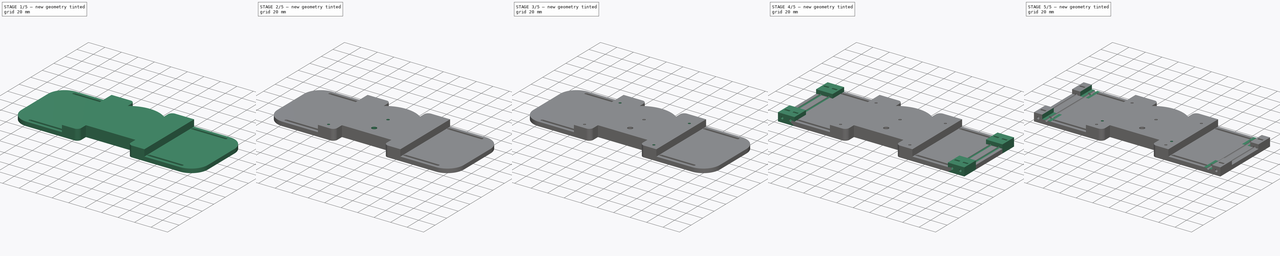
[diagram: build sequence overview — one tinted view per stage of 5, left to right]
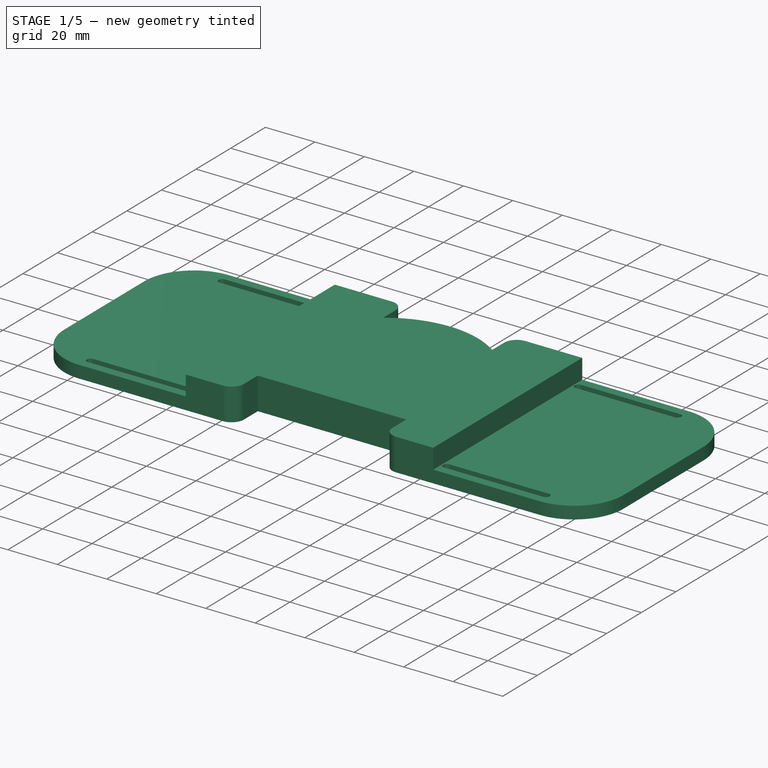
[diagram: stage 1 of 5 — iso view after this stage's code; geometry added in this stage tinted green]
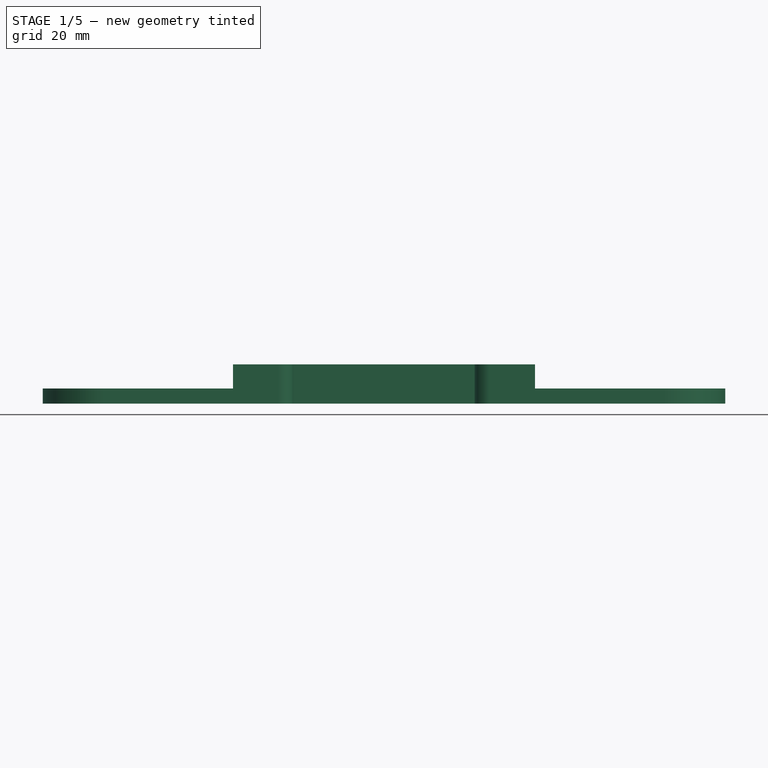
[diagram: stage 1 of 5 — front view after this stage's code; geometry added in this stage tinted green]
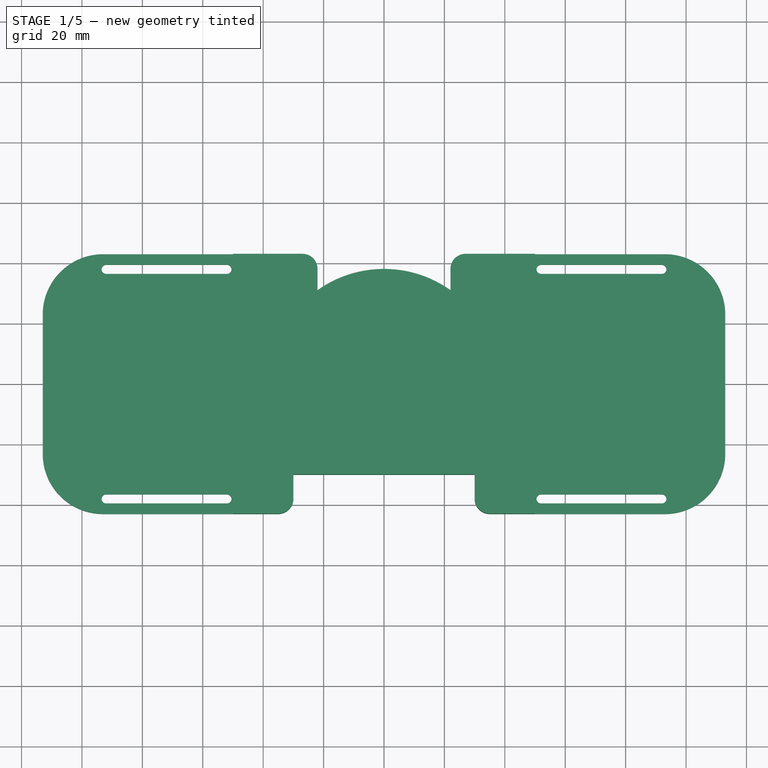
[diagram: stage 1 of 5 — top view after this stage's code; geometry added in this stage tinted green]
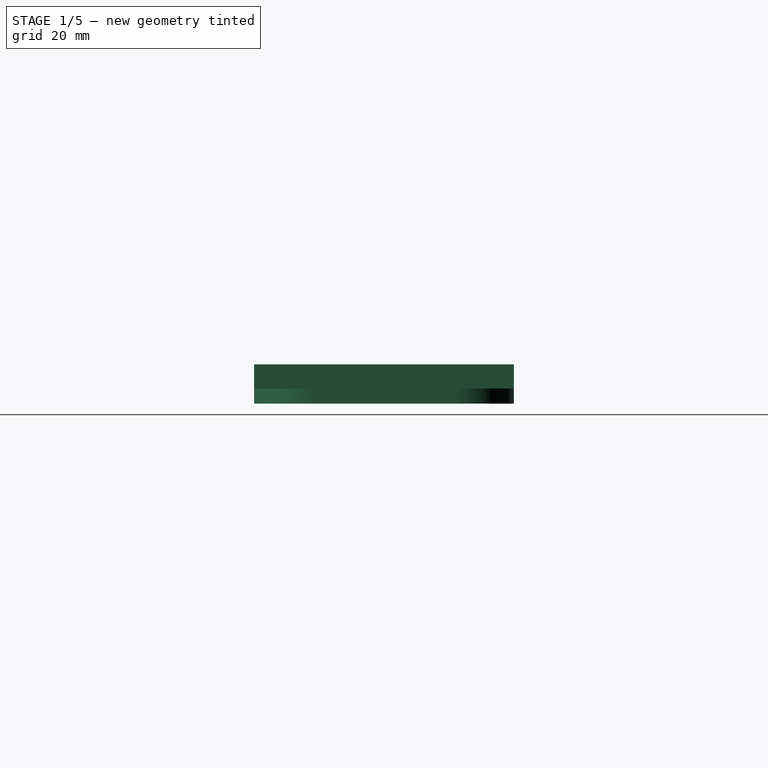
[diagram: stage 1 of 5 — right view after this stage's code; geometry added in this stage tinted green]
FCSTD DOCUMENT  (FreeCAD 0.21R33668 +26 (Git))
Label: 5_Robot_Link1_Low1_supportLeftRightmotor_1_unit
License: All rights reserved
LicenseURL: https://en.wikipedia.org/wiki/All_rights_reserved
objects: Sketcher::SketchObject×14, PartDesign::Pocket×12, PartDesign::Pad×2, Part::Feature×1, PartDesign::FeatureBase×1, PartDesign::Fillet×1, PartDesign::Body×1
note: 47 computed .brp shape members not serialized (recipe doc carries the construction recipe); baked Part::Feature solids carry a one-line shape summary decoded from their .brp

FEATURE [Part::Feature] Part__Feature  label="5_Robot_Link1_Low1_supportLeftRightmotor_1_unit"
  shape: bbox 226 x 86.01 x 5 mm, 52 faces (baked)
FEATURE [PartDesign::FeatureBase] BaseFeature
  BaseFeature = -> Part__Feature
FEATURE [Sketcher::SketchObject] Sketch
  ExternalGeometry = -> [BaseFeature]
  FullyConstrained = false
  MapMode = 5
  Placement = pos=(0,0,5) rot=(0,0,1;0rad)
  Support = -> [BaseFeature]
  sketch-geometry (12):
    g0: ArcOfCircle CenterX=0 CenterY=0 CenterZ=0 NormalX=0 NormalY=0 NormalZ=1 AngleXU=0 Radius=38 StartAngle=0.953359 EndAngle=2.18823
    g1: LineSegment StartX=-50 StartY=43.0039 StartZ=0 EndX=-22 EndY=43.0039 EndZ=0
    g2: LineSegment StartX=50 StartY=43.0039 StartZ=0 EndX=50 EndY=-43.0039 EndZ=0
    g3: LineSegment StartX=50 StartY=-43.0039 StartZ=0 EndX=30 EndY=-43.0039 EndZ=0
    g4: LineSegment StartX=-50 StartY=-43.0039 StartZ=0 EndX=-50 EndY=43.0039 EndZ=0
    g5: LineSegment StartX=-30 StartY=-30.0039 StartZ=0 EndX=30 EndY=-30.0039 EndZ=0
    g6: LineSegment StartX=30 StartY=-30.0039 StartZ=0 EndX=30 EndY=-43.0039 EndZ=0
    g7: LineSegment StartX=-30 StartY=-43.0039 StartZ=0 EndX=-30 EndY=-30.0039 EndZ=0
    g8: LineSegment StartX=-30 StartY=-43.0039 StartZ=0 EndX=-50 EndY=-43.0039 EndZ=0
    g9: LineSegment StartX=22 StartY=30.9839 StartZ=0 EndX=22 EndY=43.0039 EndZ=0
    g10: LineSegment StartX=-22 StartY=43.0039 StartZ=0 EndX=-22 EndY=30.9839 EndZ=0
    g11: LineSegment StartX=22 StartY=43.0039 StartZ=0 EndX=50 EndY=43.0039 EndZ=0
  constraints (28):
    c: Coincident(g0,g-3)
    c: Coincident(g11,g2)
    c: Coincident(g2,g3)
    c: Coincident(g8,g4)
    c: Coincident(g4,g1)
    c: Horizontal(g1)
    c: Horizontal(g3)
    c: Vertical(g2)
    c: Vertical(g4)
    c: Tangent(g0,g-3) = -1.5708
    c: Horizontal(g1,g-4)
    c: DistanceX(g1,g0) = 28
    c: DistanceX(g0,g11) = 28
    c: Horizontal(g8,g-6)
    c: Vertical(g0,g-3)
    c: Coincident(g5,g6)
    c: Coincident(g7,g5)
    c: Horizontal(g5)
    c: Vertical(g6)
    c: Vertical(g7)
    c: Coincident(g5,g-8)
    c: Vertical(g5,g-8)
    c: Vertical(g0,g-3)
    c: Coincident(g3,g6)
    c: Vertical(g9)
    c: Vertical(g10)
    c: Vertical(g9,g0)
    c: Coincident(g11,g9)
FEATURE [PartDesign::Pad] Pad
  BaseFeature = -> BaseFeature
  Direction = (0,0,1)
  Length = 8
  Length2 = 10
  Profile = -> Sketch
  ReferenceAxis = -> Sketch [N_Axis]
  Type = 0
FEATURE [PartDesign::Fillet] Fillet
  Base = -> Pad [Edge157,Edge148,Edge141,Edge131]
  BaseFeature = -> Pad
  Radius = 5
  SupportTransform = false
  UseAllEdges = false
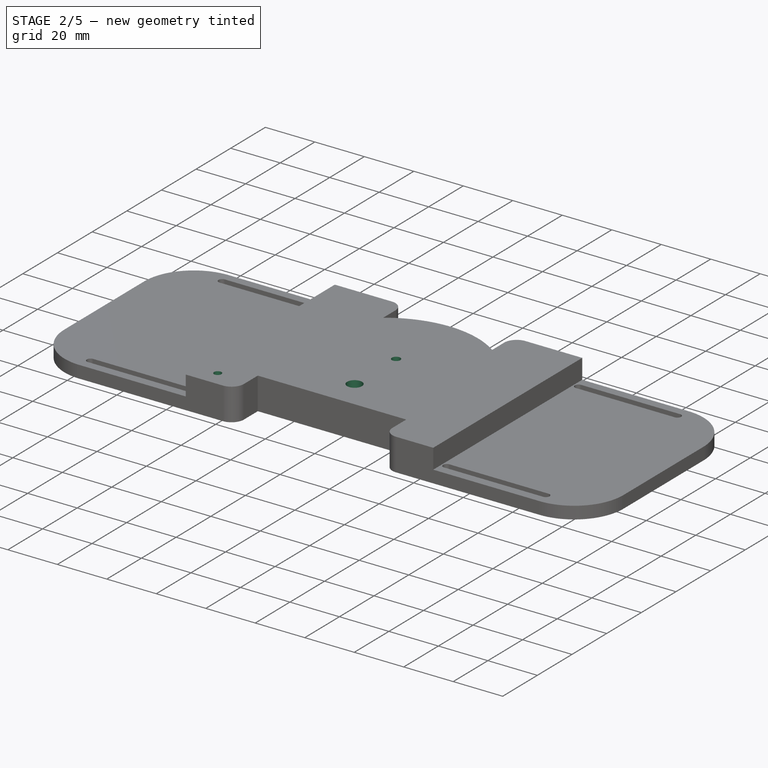
[diagram: stage 2 of 5 — iso view after this stage's code; geometry added in this stage tinted green]
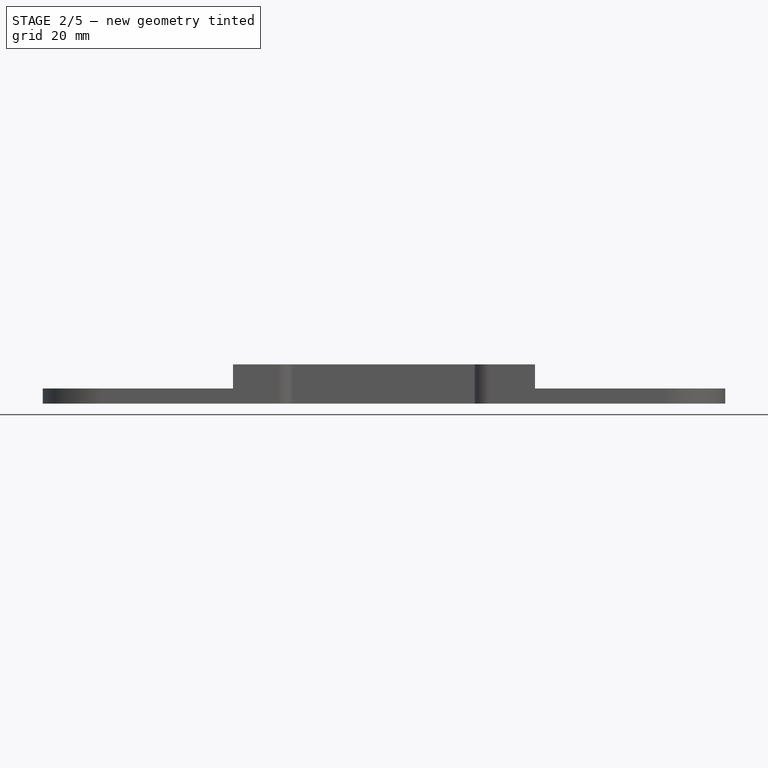
[diagram: stage 2 of 5 — front view after this stage's code; geometry added in this stage tinted green]
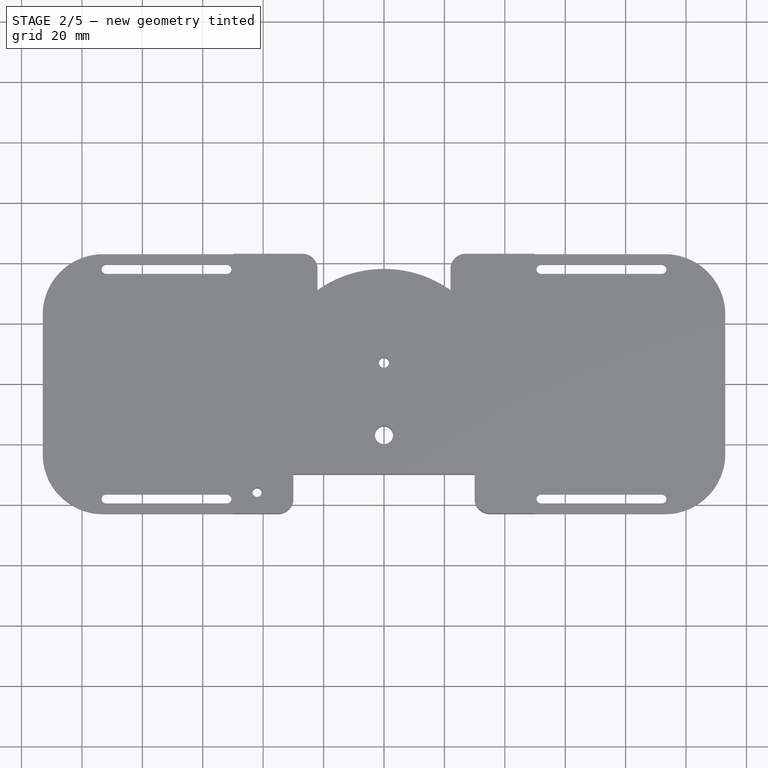
[diagram: stage 2 of 5 — top view after this stage's code; geometry added in this stage tinted green]
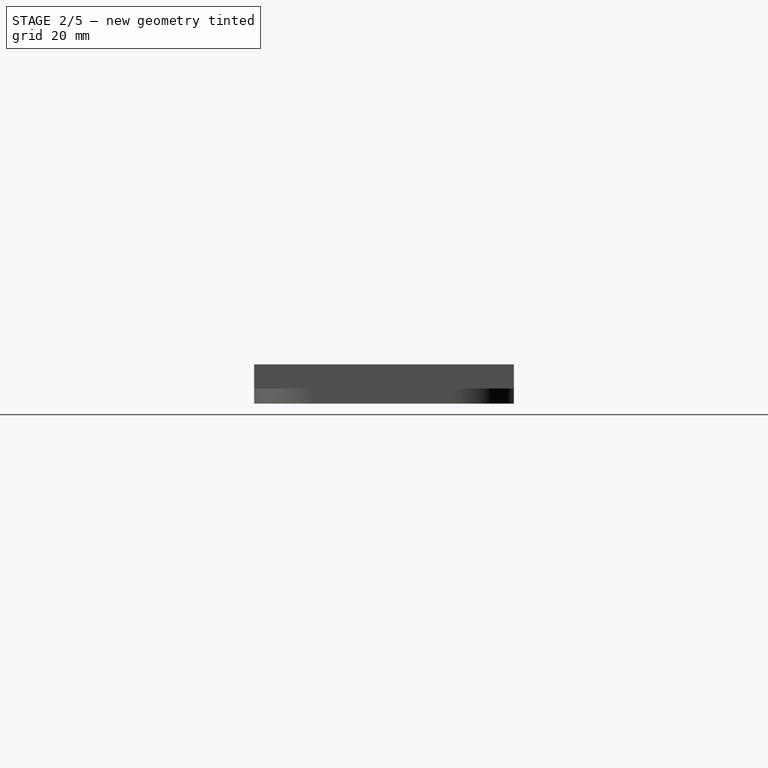
[diagram: stage 2 of 5 — right view after this stage's code; geometry added in this stage tinted green]
FEATURE [Sketcher::SketchObject] Sketch001
  ExternalGeometry = -> [Fillet]
  FullyConstrained = true
  MapMode = 5
  Placement = pos=(0,0,0) rot=(1,0,0;3.14159rad)
  Support = -> [Fillet]
  sketch-geometry (1):
    g0: Circle CenterX=0 CenterY=-7 CenterZ=0 NormalX=0 NormalY=0 NormalZ=1 AngleXU=0 Radius=1.7
  constraints (2):
    c: Coincident(g0,g-3)
    c: Tangent(g0,g-3)
FEATURE [PartDesign::Pocket] Pocket
  BaseFeature = -> Fillet
  Direction = (0,0,1)
  Length = 5
  Length2 = 5
  Profile = -> Sketch001
  ReferenceAxis = -> Sketch001 [N_Axis]
  Type = 1
FEATURE [Sketcher::SketchObject] Sketch002
  ExternalGeometry = -> [Pocket]
  FullyConstrained = true
  MapMode = 5
  Placement = pos=(0,0,0) rot=(1,0,0;3.14159rad)
  Support = -> [Pocket]
  sketch-geometry (1):
    g0: Circle CenterX=0 CenterY=17 CenterZ=0 NormalX=0 NormalY=0 NormalZ=1 AngleXU=0 Radius=3
  constraints (2):
    c: Coincident(g0,g-3)
    c: Tangent(g0,g-3)
FEATURE [PartDesign::Pocket] Pocket001
  BaseFeature = -> Pocket
  Direction = (0,0,1)
  Length = 5
  Length2 = 5
  Profile = -> Sketch002
  ReferenceAxis = -> Sketch002 [N_Axis]
  Type = 1
FEATURE [Sketcher::SketchObject] Sketch003
  ExternalGeometry = -> [Pocket001]
  FullyConstrained = true
  MapMode = 5
  Placement = pos=(0,0,0) rot=(1,0,0;3.14159rad)
  Support = -> [Pocket001]
  sketch-geometry (1):
    g0: Circle CenterX=-42 CenterY=36.0039 CenterZ=0 NormalX=0 NormalY=0 NormalZ=1 AngleXU=0 Radius=1.5
  constraints (2):
    c: Coincident(g0,g-3)
    c: Tangent(g0,g-3)
FEATURE [PartDesign::Pocket] Pocket002
  BaseFeature = -> Pocket001
  Direction = (0,0,1)
  Length = 5
  Length2 = 5
  Profile = -> Sketch003
  ReferenceAxis = -> Sketch003 [N_Axis]
  Type = 1
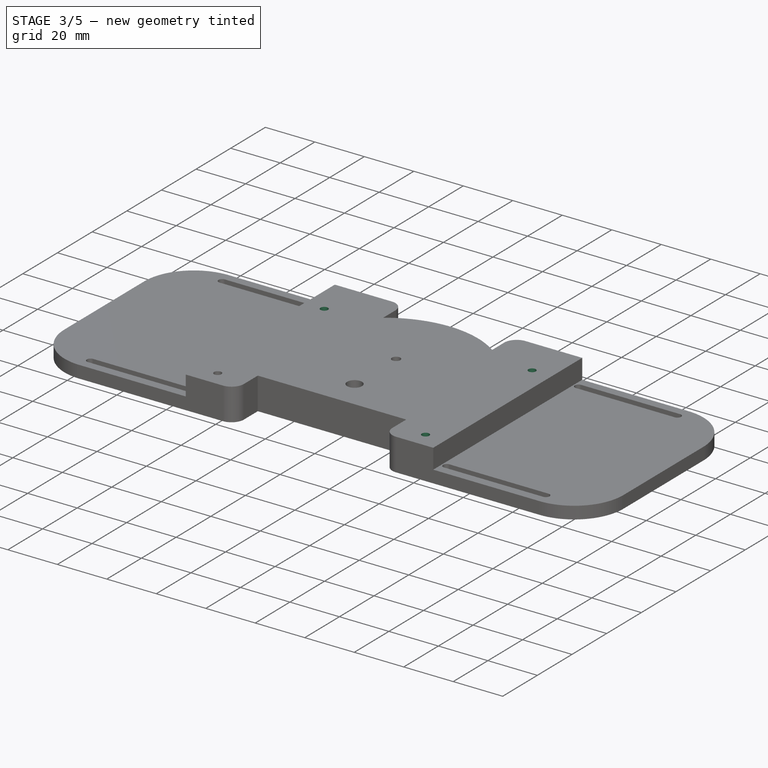
[diagram: stage 3 of 5 — iso view after this stage's code; geometry added in this stage tinted green]
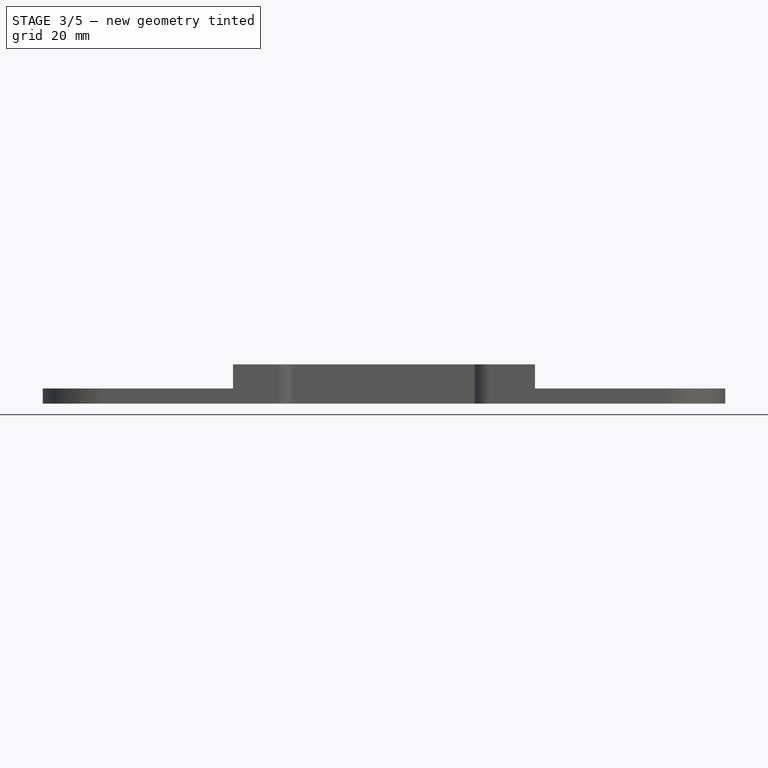
[diagram: stage 3 of 5 — front view after this stage's code; geometry added in this stage tinted green]
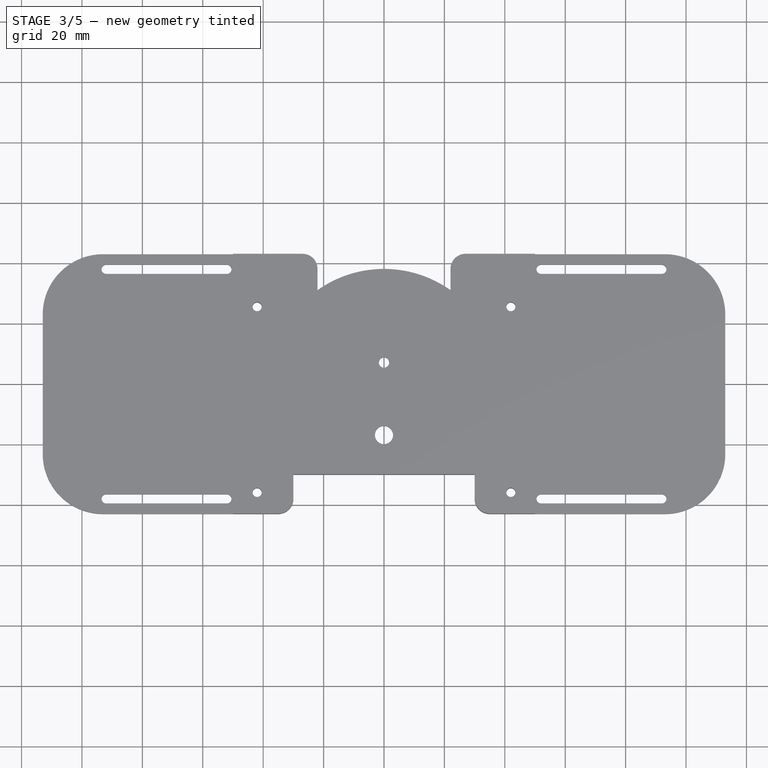
[diagram: stage 3 of 5 — top view after this stage's code; geometry added in this stage tinted green]
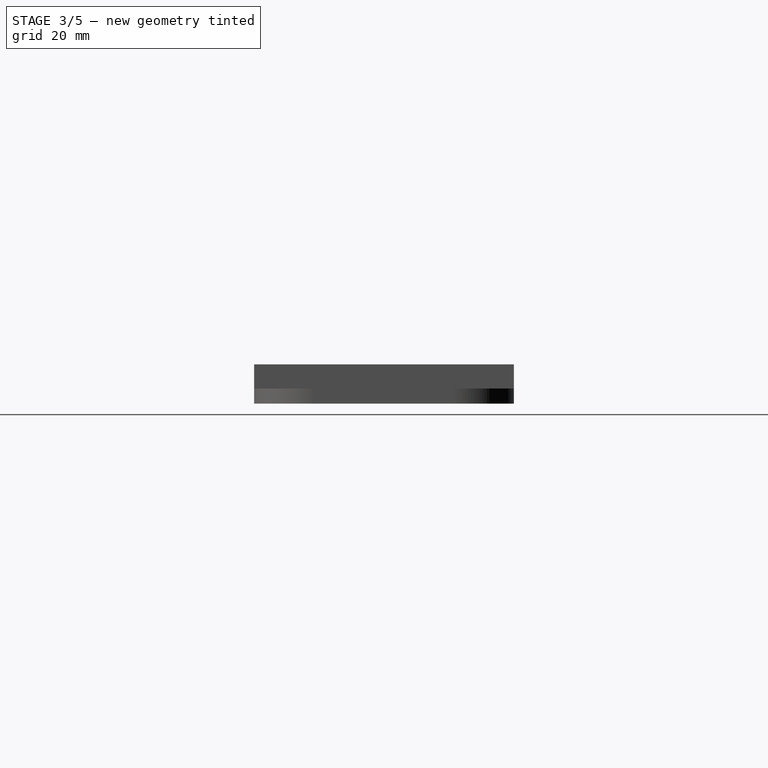
[diagram: stage 3 of 5 — right view after this stage's code; geometry added in this stage tinted green]
FEATURE [Sketcher::SketchObject] Sketch004
  ExternalGeometry = -> [Pocket002]
  FullyConstrained = true
  MapMode = 5
  Placement = pos=(0,0,0) rot=(1,0,0;3.14159rad)
  Support = -> [Pocket002]
  sketch-geometry (1):
    g0: Circle CenterX=42 CenterY=36.0039 CenterZ=0 NormalX=0 NormalY=0 NormalZ=1 AngleXU=0 Radius=1.5
  constraints (2):
    c: Coincident(g0,g-3)
    c: Tangent(g0,g-3)
FEATURE [PartDesign::Pocket] Pocket003
  BaseFeature = -> Pocket002
  Direction = (0,0,1)
  Length = 5
  Length2 = 5
  Profile = -> Sketch004
  ReferenceAxis = -> Sketch004 [N_Axis]
  Type = 1
FEATURE [Sketcher::SketchObject] Sketch005
  ExternalGeometry = -> [Pocket003]
  FullyConstrained = true
  MapMode = 5
  Placement = pos=(0,0,0) rot=(1,0,0;3.14159rad)
  Support = -> [Pocket003]
  sketch-geometry (1):
    g0: Circle CenterX=-42 CenterY=-25.4961 CenterZ=0 NormalX=0 NormalY=0 NormalZ=1 AngleXU=0 Radius=1.5
  constraints (2):
    c: Coincident(g0,g-3)
    c: Tangent(g0,g-3)
FEATURE [PartDesign::Pocket] Pocket004
  BaseFeature = -> Pocket003
  Direction = (0,0,1)
  Length = 5
  Length2 = 5
  Profile = -> Sketch005
  ReferenceAxis = -> Sketch005 [N_Axis]
  Type = 1
FEATURE [Sketcher::SketchObject] Sketch006
  ExternalGeometry = -> [Pocket004]
  FullyConstrained = true
  MapMode = 5
  Placement = pos=(0,0,0) rot=(1,0,0;3.14159rad)
  Support = -> [Pocket004]
  sketch-geometry (1):
    g0: Circle CenterX=42 CenterY=-25.4961 CenterZ=0 NormalX=0 NormalY=0 NormalZ=1 AngleXU=0 Radius=1.5
  constraints (2):
    c: Coincident(g0,g-3)
    c: Tangent(g0,g-3)
FEATURE [PartDesign::Pocket] Pocket005
  BaseFeature = -> Pocket004
  Direction = (0,0,1)
  Length = 5
  Length2 = 5
  Profile = -> Sketch006
  ReferenceAxis = -> Sketch006 [N_Axis]
  Type = 1
FEATURE [Sketcher::SketchObject] Sketch007
  FullyConstrained = true
  MapMode = 5
  Placement = pos=(0,0,0) rot=(1,0,0;3.14159rad)
  Support = -> [Pocket005]
  sketch-geometry (1):
    g0: Circle CenterX=0 CenterY=0 CenterZ=0 NormalX=0 NormalY=0 NormalZ=1 AngleXU=0 Radius=30
  constraints (2):
    c: Coincident(g0,g-1)
    c: Diameter(g0) = 60
FEATURE [PartDesign::Pocket] Pocket006
  BaseFeature = -> Pocket005
  Direction = (0,0,1)
  Length = 8
  Length2 = 5
  Profile = -> Sketch007
  ReferenceAxis = -> Sketch007 [N_Axis]
  Type = 0
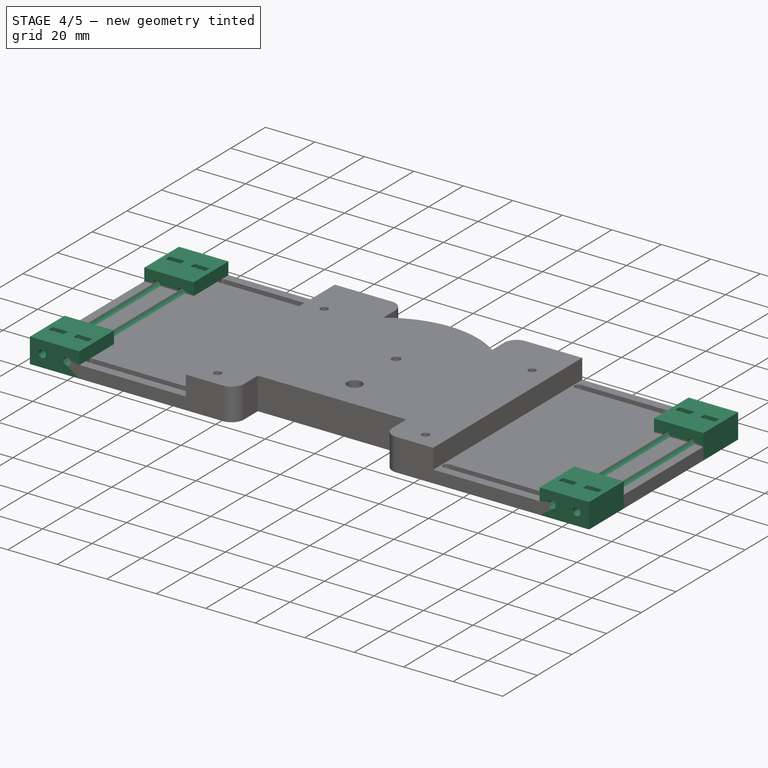
[diagram: stage 4 of 5 — iso view after this stage's code; geometry added in this stage tinted green]
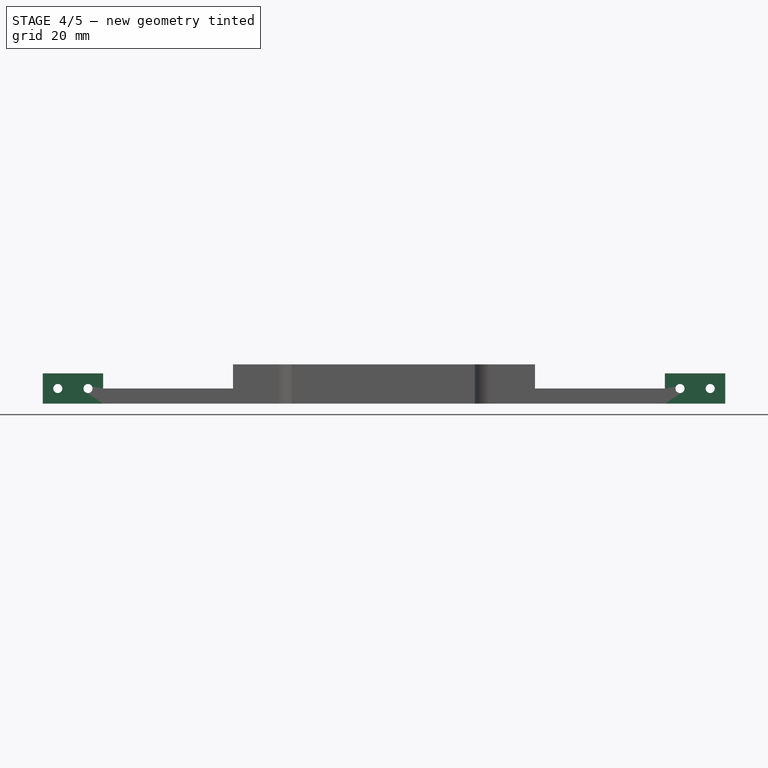
[diagram: stage 4 of 5 — front view after this stage's code; geometry added in this stage tinted green]
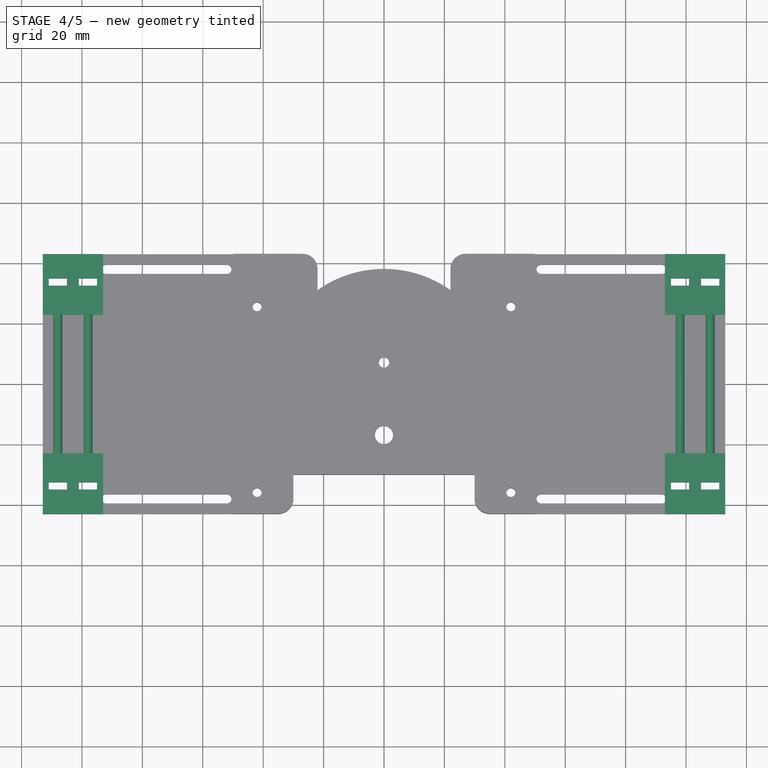
[diagram: stage 4 of 5 — top view after this stage's code; geometry added in this stage tinted green]
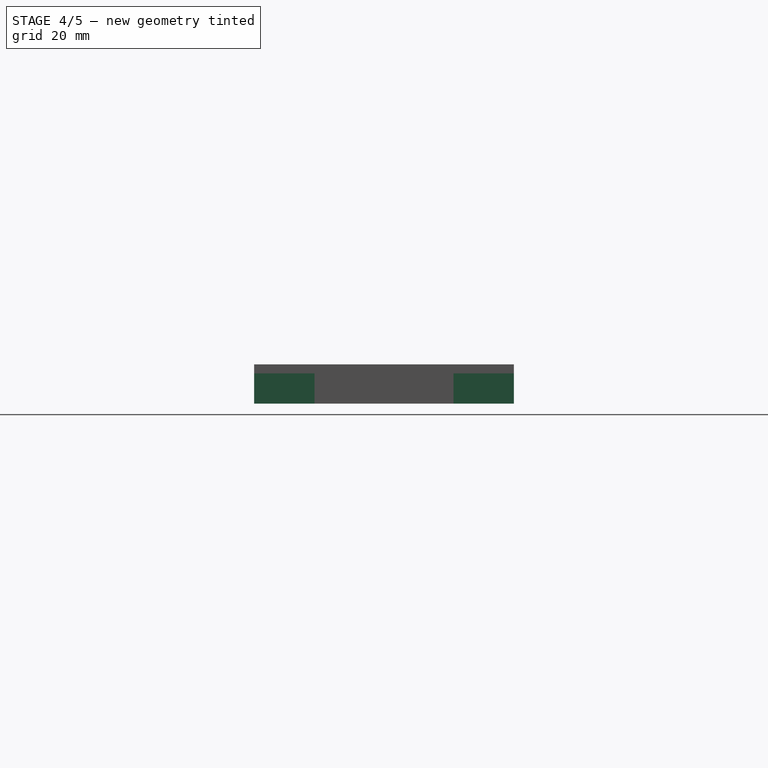
[diagram: stage 4 of 5 — right view after this stage's code; geometry added in this stage tinted green]
FEATURE [Sketcher::SketchObject] Sketch008
  ExternalGeometry = -> [Pocket006]
  FullyConstrained = true
  MapMode = 5
  Placement = pos=(0,0,0) rot=(1,0,0;3.14159rad)
  Support = -> [Pocket006]
  sketch-geometry (16):
    g0: LineSegment StartX=-113 StartY=-23.0039 StartZ=0 EndX=-93 EndY=-23.0039 EndZ=0
    g1: LineSegment StartX=-93 StartY=-23.0039 StartZ=0 EndX=-93 EndY=-43.0039 EndZ=0
    g2: LineSegment StartX=-93 StartY=-43.0039 StartZ=0 EndX=-113 EndY=-43.0039 EndZ=0
    g3: LineSegment StartX=-113 StartY=-43.0039 StartZ=0 EndX=-113 EndY=-23.0039 EndZ=0
    g4: LineSegment StartX=-113 StartY=23.0039 StartZ=0 EndX=-93 EndY=23.0039 EndZ=0
    g5: LineSegment StartX=-93 StartY=23.0039 StartZ=0 EndX=-93 EndY=43.0039 EndZ=0
    g6: LineSegment StartX=-93 StartY=43.0039 StartZ=0 EndX=-113 EndY=43.0039 EndZ=0
    g7: LineSegment StartX=-113 StartY=43.0039 StartZ=0 EndX=-113 EndY=23.0039 EndZ=0
    g8: LineSegment StartX=93 StartY=43.0039 StartZ=0 EndX=113 EndY=43.0039 EndZ=0
    g9: LineSegment StartX=113 StartY=43.0039 StartZ=0 EndX=113 EndY=23.0039 EndZ=0
    g10: LineSegment StartX=113 StartY=23.0039 StartZ=0 EndX=93 EndY=23.0039 EndZ=0
    g11: LineSegment StartX=93 StartY=23.0039 StartZ=0 EndX=93 EndY=43.0039 EndZ=0
    g12: LineSegment StartX=113 StartY=-23.0039 StartZ=0 EndX=93 EndY=-23.0039 EndZ=0
    g13: LineSegment StartX=93 StartY=-23.0039 StartZ=0 EndX=93 EndY=-43.0039 EndZ=0
    g14: LineSegment StartX=93 StartY=-43.0039 StartZ=0 EndX=113 EndY=-43.0039 EndZ=0
    g15: LineSegment StartX=113 StartY=-43.0039 StartZ=0 EndX=113 EndY=-23.0039 EndZ=0
  constraints (40):
    c: Coincident(g0,g1)
    c: Coincident(g1,g2)
    c: Coincident(g2,g3)
    c: Coincident(g3,g0)
    c: Horizontal(g0)
    c: Horizontal(g2)
    c: Vertical(g1)
    c: Vertical(g3)
    c: Coincident(g0,g-3)
    c: Coincident(g1,g-8)
    c: Coincident(g4,g5)
    c: Coincident(g5,g6)
    c: Coincident(g6,g7)
    c: Coincident(g7,g4)
    c: Horizontal(g4)
    c: Horizontal(g6)
    c: Vertical(g5)
    c: Vertical(g7)
    c: Coincident(g4,g-3)
    c: Coincident(g5,g-4)
    c: Coincident(g8,g9)
    c: Coincident(g9,g10)
    c: Coincident(g10,g11)
    c: Coincident(g11,g8)
    c: Horizontal(g8)
    c: Horizontal(g10)
    c: Vertical(g9)
    c: Vertical(g11)
    c: Coincident(g8,g-5)
    c: Coincident(g9,g-6)
    c: Coincident(g12,g13)
    c: Coincident(g13,g14)
    c: Coincident(g14,g15)
    c: Coincident(g15,g12)
    c: Horizontal(g12)
    c: Horizontal(g14)
    c: Vertical(g13)
    c: Vertical(g15)
    c: Coincident(g12,g-6)
    c: Coincident(g13,g-7)
FEATURE [PartDesign::Pad] Pad001
  BaseFeature = -> Pocket006
  Direction = (0,0,-1)
  Length = 10
  Length2 = 10
  Profile = -> Sketch008
  ReferenceAxis = -> Sketch008 [N_Axis]
  Reversed = true
  Type = 0
FEATURE [Sketcher::SketchObject] Sketch009
  ExternalGeometry = -> [Pad001]
  FullyConstrained = true
  MapMode = 5
  Placement = pos=(0,43.0039,0) rot=(0,0.707107,0.707107;3.14159rad)
  Support = -> [Pad001]
  sketch-geometry (4):
    g0: Circle CenterX=-108 CenterY=5 CenterZ=0 NormalX=0 NormalY=0 NormalZ=1 AngleXU=0 Radius=1.5
    g1: Circle CenterX=-98 CenterY=5 CenterZ=0 NormalX=0 NormalY=0 NormalZ=1 AngleXU=0 Radius=1.5
    g2: Circle CenterX=98 CenterY=5 CenterZ=0 NormalX=0 NormalY=0 NormalZ=1 AngleXU=0 Radius=1.5
    g3: Circle CenterX=108 CenterY=5 CenterZ=0 NormalX=0 NormalY=0 NormalZ=1 AngleXU=0 Radius=1.5
  constraints (14):
    c: Diameter(g3) = 3
    c: Equal(g2,g3)
    c: Equal(g1,g2)
    c: Equal(g0,g1)
    c: Horizontal(g0,g1)
    c: Horizontal(g2,g1)
    c: Horizontal(g2,g3)
    c: DistanceX(g2,g3) = 10
    c: DistanceX(g-3,g-3) = 20
    c: DistanceX(g3,g-3) = 5
    c: DistanceY(g-4,g-4) = 10
    c: DistanceY(g3,g-4) = 5
    c: DistanceX(g0,g1) = 10
    c: DistanceX(g-5,g0) = 5
FEATURE [PartDesign::Pocket] Pocket007
  BaseFeature = -> Pad001
  Direction = (0,-1,2e-16)
  Length = 5
  Length2 = 5
  Profile = -> Sketch009
  ReferenceAxis = -> Sketch009 [N_Axis]
  Type = 1
FEATURE [Sketcher::SketchObject] Sketch010
  ExternalGeometry = -> [Pocket007]
  FullyConstrained = true
  MapMode = 5
  Placement = pos=(0,0,10) rot=(0,0,1;0rad)
  Support = -> [Pocket007]
  sketch-geometry (32):
    g0: LineSegment StartX=-111 StartY=35.0039 StartZ=0 EndX=-105 EndY=35.0039 EndZ=0
    g1: LineSegment StartX=-105 StartY=35.0039 StartZ=0 EndX=-105 EndY=32.5039 EndZ=0
    g2: LineSegment StartX=-105 StartY=32.5039 StartZ=0 EndX=-111 EndY=32.5039 EndZ=0
    g3: LineSegment StartX=-111 StartY=32.5039 StartZ=0 EndX=-111 EndY=35.0039 EndZ=0
    g4: LineSegment StartX=-101 StartY=35.0039 StartZ=0 EndX=-95 EndY=35.0039 EndZ=0
    g5: LineSegment StartX=-95 StartY=35.0039 StartZ=0 EndX=-95 EndY=32.5039 EndZ=0
    g6: LineSegment StartX=-95 StartY=32.5039 StartZ=0 EndX=-101 EndY=32.5039 EndZ=0
    g7: LineSegment StartX=-101 StartY=32.5039 StartZ=0 EndX=-101 EndY=35.0039 EndZ=0
    g8: LineSegment StartX=95 StartY=35.0039 StartZ=0 EndX=101 EndY=35.0039 EndZ=0
    g9: LineSegment StartX=101 StartY=35.0039 StartZ=0 EndX=101 EndY=32.5039 EndZ=0
    g10: LineSegment StartX=101 StartY=32.5039 StartZ=0 EndX=95 EndY=32.5039 EndZ=0
    g11: LineSegment StartX=95 StartY=32.5039 StartZ=0 EndX=95 EndY=35.0039 EndZ=0
    g12: LineSegment StartX=105 StartY=35.0039 StartZ=0 EndX=111 EndY=35.0039 EndZ=0
    g13: LineSegment StartX=111 StartY=35.0039 StartZ=0 EndX=111 EndY=32.5039 EndZ=0
    g14: LineSegment StartX=111 StartY=32.5039 StartZ=0 EndX=105 EndY=32.5039 EndZ=0
    g15: LineSegment StartX=105 StartY=32.5039 StartZ=0 EndX=105 EndY=35.0039 EndZ=0
    g16: LineSegment StartX=95 StartY=-32.5039 StartZ=0 EndX=101 EndY=-32.5039 EndZ=0
    g17: LineSegment StartX=101 StartY=-32.5039 StartZ=0 EndX=101 EndY=-35.0039 EndZ=0
    g18: LineSegment StartX=101 StartY=-35.0039 StartZ=0 EndX=95 EndY=-35.0039 EndZ=0
    g19: LineSegment StartX=95 StartY=-35.0039 StartZ=0 EndX=95 EndY=-32.5039 EndZ=0
    g20: LineSegment StartX=105 StartY=-32.5039 StartZ=0 EndX=111 EndY=-32.5039 EndZ=0
    g21: LineSegment StartX=111 StartY=-32.5039 StartZ=0 EndX=111 EndY=-35.0039 EndZ=0
    g22: LineSegment StartX=111 StartY=-35.0039 StartZ=0 EndX=105 EndY=-35.0039 EndZ=0
    g23: LineSegment StartX=105 StartY=-35.0039 StartZ=0 EndX=105 EndY=-32.5039 EndZ=0
    g24: LineSegment StartX=-111 StartY=-32.5039 StartZ=0 EndX=-105 EndY=-32.5039 EndZ=0
    g25: LineSegment StartX=-105 StartY=-32.5039 StartZ=0 EndX=-105 EndY=-35.0039 EndZ=0
    g26: LineSegment StartX=-105 StartY=-35.0039 StartZ=0 EndX=-111 EndY=-35.0039 EndZ=0
    g27: LineSegment StartX=-111 StartY=-35.0039 StartZ=0 EndX=-111 EndY=-32.5039 EndZ=0
    g28: LineSegment StartX=-101 StartY=-32.5039 StartZ=0 EndX=-95 EndY=-32.5039 EndZ=0
    g29: LineSegment StartX=-95 StartY=-32.5039 StartZ=0 EndX=-95 EndY=-35.0039 EndZ=0
    g30: LineSegment StartX=-95 StartY=-35.0039 StartZ=0 EndX=-101 EndY=-35.0039 EndZ=0
    g31: LineSegment StartX=-101 StartY=-35.0039 StartZ=0 EndX=-101 EndY=-32.5039 EndZ=0
  constraints (97):
    c: Coincident(g0,g1)
    c: Coincident(g1,g2)
    c: Coincident(g2,g3)
    c: Coincident(g3,g0)
    c: Horizontal(g0)
    c: Horizontal(g2)
    c: Vertical(g1)
    c: Vertical(g3)
    c: DistanceY(g1,g1) = 2.5
    c: DistanceX(g0,g0) = 6
    c: DistanceX(g-3,g0) = 2
    c: DistanceY(g-4,g-3) = 20
    c: DistanceY(g0,g-3) = 8
    c: Coincident(g4,g5)
    c: Coincident(g5,g6)
    c: Coincident(g6,g7)
    c: Coincident(g7,g4)
    c: Horizontal(g4)
    c: Horizontal(g6)
    c: Vertical(g5)
    c: Vertical(g7)
    c: DistanceX(g4,g-3) = 2
    c: Equal(g7,g1)
    c: Equal(g4,g0)
    c: Horizontal(g4,g0)
    c: Coincident(g8,g9)
    c: Coincident(g9,g10)
    c: Coincident(g10,g11)
    c: Coincident(g11,g8)
    c: Horizontal(g8)
    c: Horizontal(g10)
    c: Vertical(g9)
    c: Vertical(g11)
    c: Coincident(g12,g13)
    c: Coincident(g13,g14)
    c: Coincident(g14,g15)
    c: Coincident(g15,g12)
    c: Horizontal(g12)
    c: Horizontal(g14)
    c: Vertical(g13)
    c: Vertical(g15)
    c: Coincident(g16,g17)
    c: Coincident(g17,g18)
    c: Coincident(g18,g19)
    c: Coincident(g19,g16)
    c: Horizontal(g16)
    c: Horizontal(g18)
    c: Vertical(g17)
    c: Vertical(g19)
    c: Coincident(g20,g21)
    c: Coincident(g21,g22)
    c: Coincident(g22,g23)
    c: Coincident(g23,g20)
    c: Horizontal(g20)
    c: Horizontal(g22)
    c: Vertical(g21)
    c: Vertical(g23)
    c: Coincident(g24,g25)
    c: Coincident(g25,g26)
    c: Coincident(g26,g27)
    c: Coincident(g27,g24)
    c: Horizontal(g24)
    c: Horizontal(g26)
    c: Vertical(g25)
    c: Vertical(g27)
    c: Coincident(g28,g29)
    c: Coincident(g29,g30)
    c: Coincident(g30,g31)
    c: Coincident(g31,g28)
    c: Horizontal(g28)
    c: Horizontal(g30)
    c: Vertical(g29)
    c: Vertical(g31)
    c: Vertical(g28,g5)
    c: Vertical(g28,g6)
    c: Vertical(g24,g1)
    c: Vertical(g24,g2)
    c: Vertical(g20,g13)
    c: Vertical(g20,g14)
    c: Vertical(g9,g16)
    c: Vertical(g16,g10)
    c: Horizontal(g8,g12)
    c: Horizontal(g8,g4)
    c: Horizontal(g10,g5)
    c: Horizontal(g14,g9)
    c: DistanceX(g12,g-5) = 2
    c: DistanceX(g-5,g8) = 2
    c: DistanceX(g8,g8) = 6
    c: Equal(g12,g8)
    c: Horizontal(g16,g20)
    c: Horizontal(g17,g22)
    c: DistanceY(g-6,g21) = 8
    c: Horizontal(g24,g28)
    c: Horizontal(g25,g30)
    c: Horizontal(g29,g18)
    c: Horizontal(g28,g16)
    c: DistanceY(g29,g29) = 2.5
FEATURE [PartDesign::Pocket] Pocket008
  BaseFeature = -> Pocket007
  Direction = (0,0,-1)
  Length = 5
  Length2 = 5
  Profile = -> Sketch010
  ReferenceAxis = -> Sketch010 [N_Axis]
  Type = 1
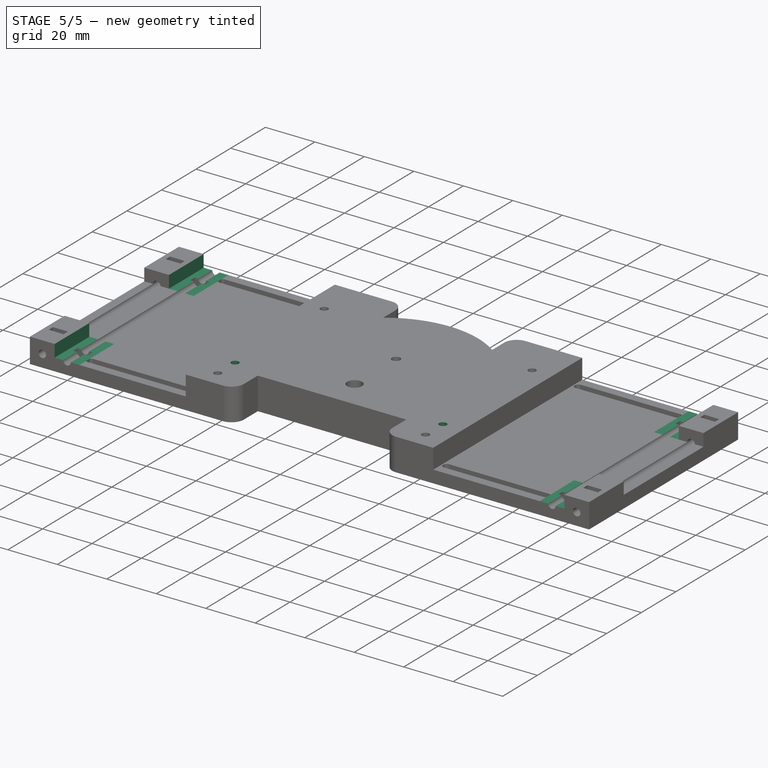
[diagram: stage 5 of 5 — iso view after this stage's code; geometry added in this stage tinted green]
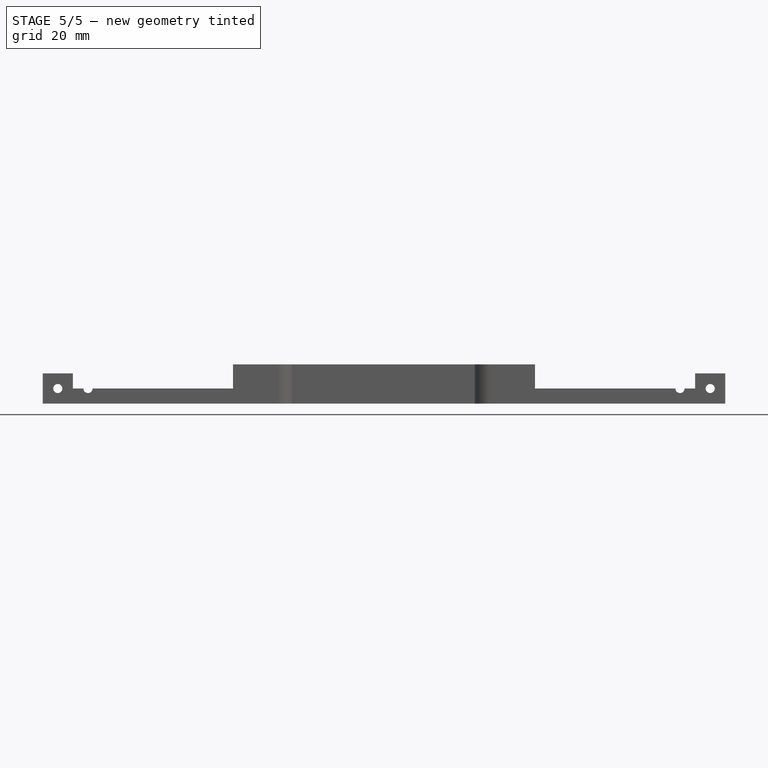
[diagram: stage 5 of 5 — front view after this stage's code; geometry added in this stage tinted green]
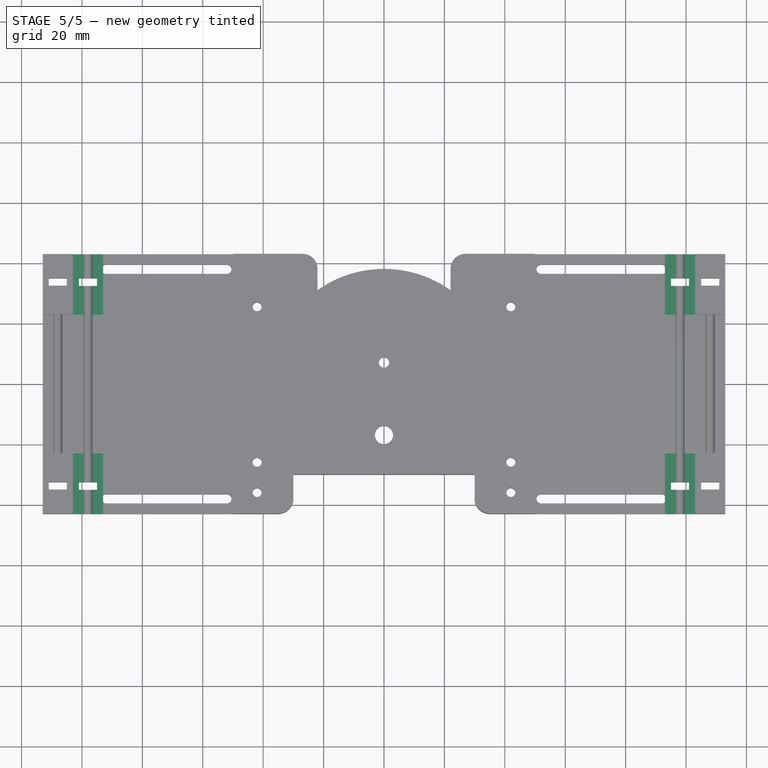
[diagram: stage 5 of 5 — top view after this stage's code; geometry added in this stage tinted green]
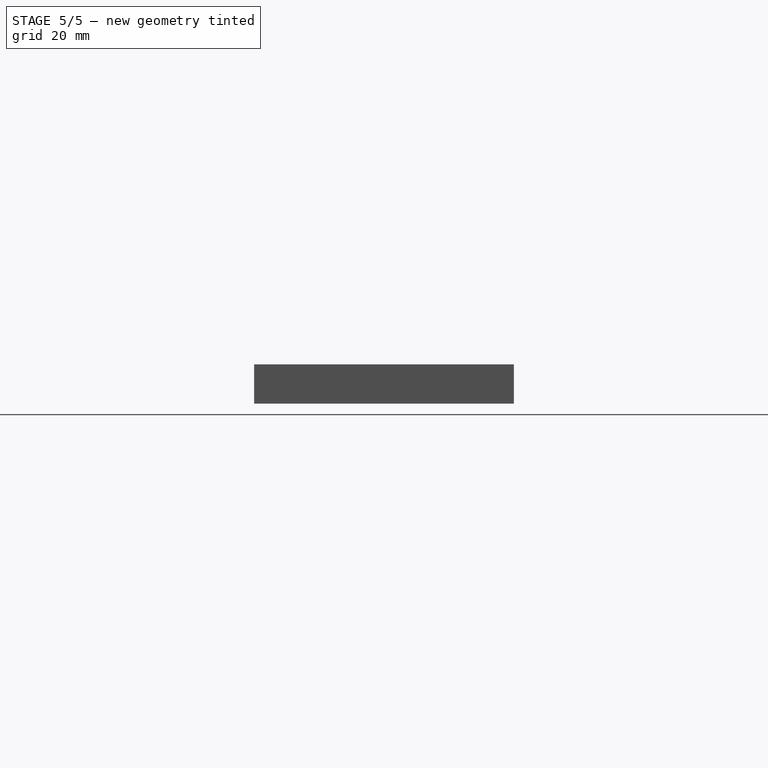
[diagram: stage 5 of 5 — right view after this stage's code; geometry added in this stage tinted green]
FEATURE [Sketcher::SketchObject] Sketch011
  ExternalGeometry = -> [Pocket008]
  FullyConstrained = true
  MapMode = 5
  Placement = pos=(0,0,13) rot=(0,0,1;0rad)
  Support = -> [Pocket008]
  sketch-geometry (2):
    g0: Circle CenterX=42 CenterY=-26.0039 CenterZ=0 NormalX=0 NormalY=0 NormalZ=1 AngleXU=0 Radius=1.5
    g1: Circle CenterX=-42 CenterY=-26.0039 CenterZ=0 NormalX=0 NormalY=0 NormalZ=1 AngleXU=0 Radius=1.5
  constraints (6):
    c: Horizontal(g1,g0)
    c: Diameter(g0) = 3
    c: Equal(g0,g1)
    c: Vertical(g0,g-4)
    c: Vertical(g-3,g1)
    c: DistanceY(g-4,g0) = 10
FEATURE [PartDesign::Pocket] Pocket009
  BaseFeature = -> Pocket008
  Direction = (0,0,-1)
  Length = 5
  Length2 = 5
  Profile = -> Sketch011
  ReferenceAxis = -> Sketch011 [N_Axis]
  Type = 1
FEATURE [Sketcher::SketchObject] Sketch012
  ExternalGeometry = -> [Pocket009]
  FullyConstrained = true
  MapMode = 5
  Placement = pos=(0,0,0) rot=(1,0,0;3.14159rad)
  Support = -> [Pocket009]
  sketch-geometry (2):
    g0: Circle CenterX=-42 CenterY=26.0039 CenterZ=0 NormalX=0 NormalY=0 NormalZ=1 AngleXU=0 Radius=3.75
    g1: Circle CenterX=42 CenterY=26.0039 CenterZ=0 NormalX=0 NormalY=0 NormalZ=1 AngleXU=0 Radius=3.75
  constraints (4):
    c: Coincident(g0,g-3)
    c: Coincident(g1,g-4)
    c: Diameter(g1) = 7.5
    c: Equal(g0,g1)
FEATURE [PartDesign::Pocket] Pocket010
  BaseFeature = -> Pocket009
  Direction = (0,0,1)
  Length = 6
  Length2 = 5
  Profile = -> Sketch012
  ReferenceAxis = -> Sketch012 [N_Axis]
  Type = 0
FEATURE [Sketcher::SketchObject] Sketch013
  ExternalGeometry = -> [Pocket010]
  FullyConstrained = false
  MapMode = 5
  Placement = pos=(0,0,10) rot=(0,0,1;0rad)
  Support = -> [Pocket010]
  sketch-geometry (8):
    g0: LineSegment StartX=-103 StartY=47.903 StartZ=0 EndX=-93 EndY=47.903 EndZ=0
    g1: LineSegment StartX=-93 StartY=47.903 StartZ=0 EndX=-93 EndY=-51.4548 EndZ=0
    g2: LineSegment StartX=-93 StartY=-51.4548 StartZ=0 EndX=-103 EndY=-51.4548 EndZ=0
    g3: LineSegment StartX=-103 StartY=-51.4548 StartZ=0 EndX=-103 EndY=47.903 EndZ=0
    g4: LineSegment StartX=93 StartY=56.4108 StartZ=0 EndX=103 EndY=56.4108 EndZ=0
    g5: LineSegment StartX=103 StartY=56.4108 StartZ=0 EndX=103 EndY=-50.9947 EndZ=0
    g6: LineSegment StartX=103 StartY=-50.9947 StartZ=0 EndX=93 EndY=-50.9947 EndZ=0
    g7: LineSegment StartX=93 StartY=-50.9947 StartZ=0 EndX=93 EndY=56.4108 EndZ=0
  constraints (19):
    c: Coincident(g0,g1)
    c: Coincident(g1,g2)
    c: Coincident(g2,g3)
    c: Coincident(g3,g0)
    c: Horizontal(g0)
    c: Horizontal(g2)
    c: Vertical(g1)
    c: Vertical(g3)
    c: DistanceX(g0,g-3) = 10
    c: Coincident(g4,g5)
    c: Coincident(g5,g6)
    c: Coincident(g6,g7)
    c: Coincident(g7,g4)
    c: Horizontal(g4)
    c: Horizontal(g6)
    c: Vertical(g5)
    c: Vertical(g7)
    c: Vertical(g0,g-3)
    c: Vertical(g4,g-4)
FEATURE [PartDesign::Pocket] Pocket011
  BaseFeature = -> Pocket010
  Direction = (0,0,-1)
  Length = 0
  Length2 = 5
  Profile = -> Sketch013
  ReferenceAxis = -> Sketch013 [N_Axis]
  Type = 3
  UpToFace = -> Pocket010 [Face37]
FEATURE [PartDesign::Body] Body
  BaseFeature = -> Part__Feature
  Group = -> [BaseFeature,Sketch,Pad,Fillet,Sketch001,Pocket,Sketch002,Pocket001,Sketch003,Pocket002,Sketch004,Pocket003,Sketch005,Pocket004,Sketch006,Pocket005,Sketch007,Pocket006,Sketch008,Pad001,Sketch009,Pocket007,Sketch010,Pocket008,Sketch011,Pocket009,Sketch012,Pocket010,Sketch013,Pocket011]
  Origin = -> Origin
  Tip = -> Pocket011
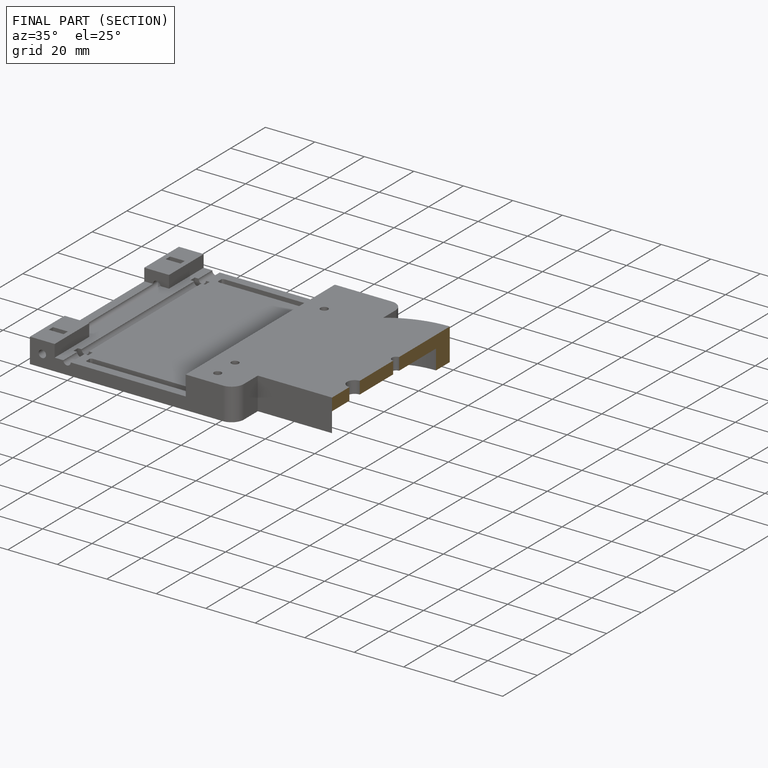
[diagram: finished part — half-section view (interior)]
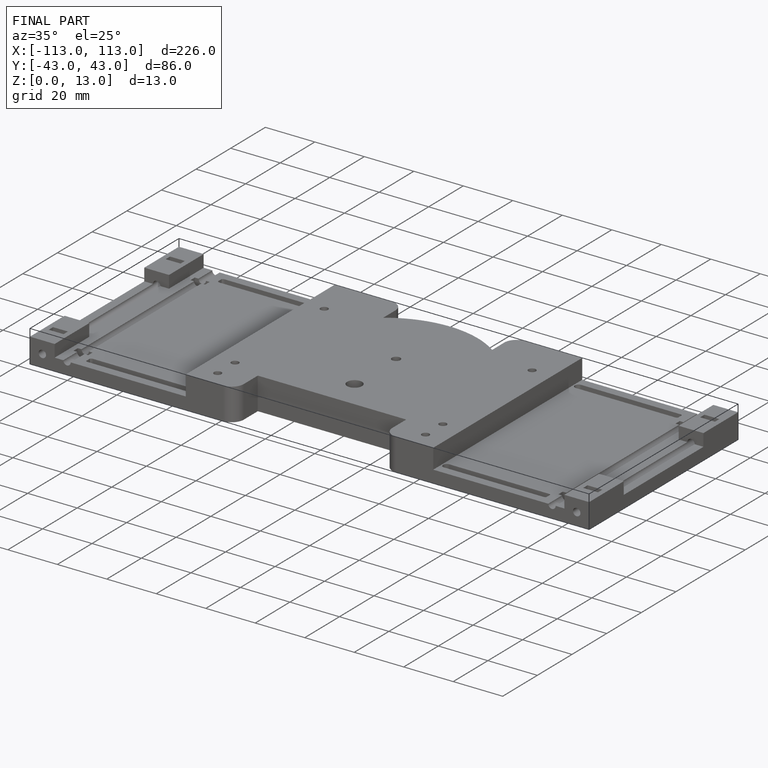
[diagram: finished part — iso view with bounding-box wireframe]
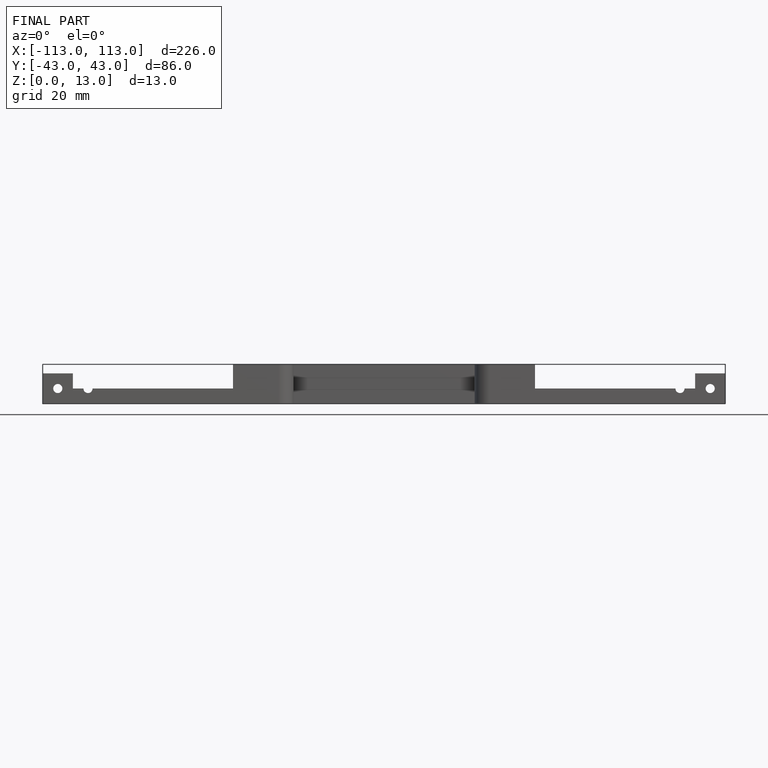
[diagram: finished part — front view with bounding-box wireframe]
